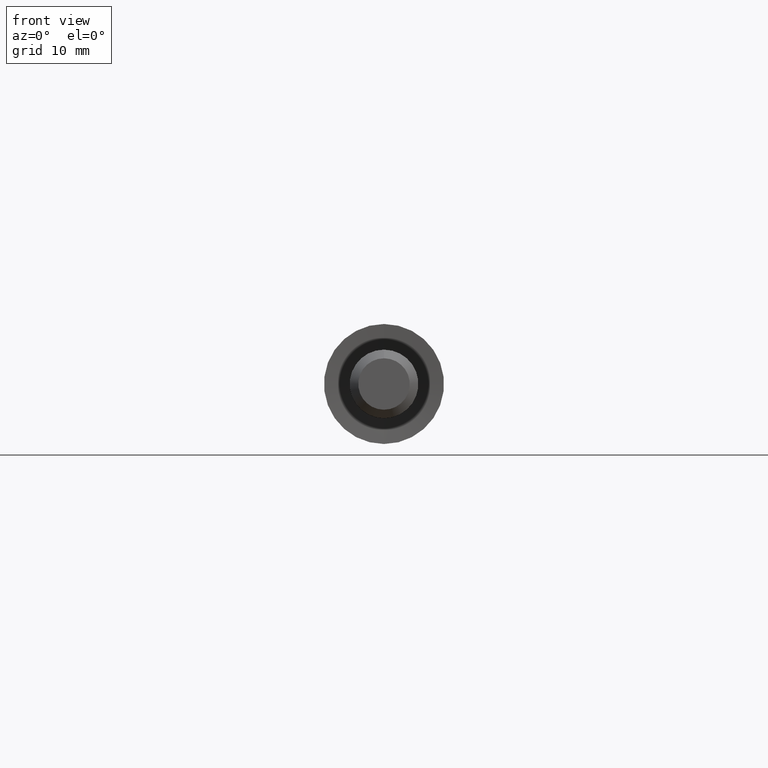
[diagram: clean part render]
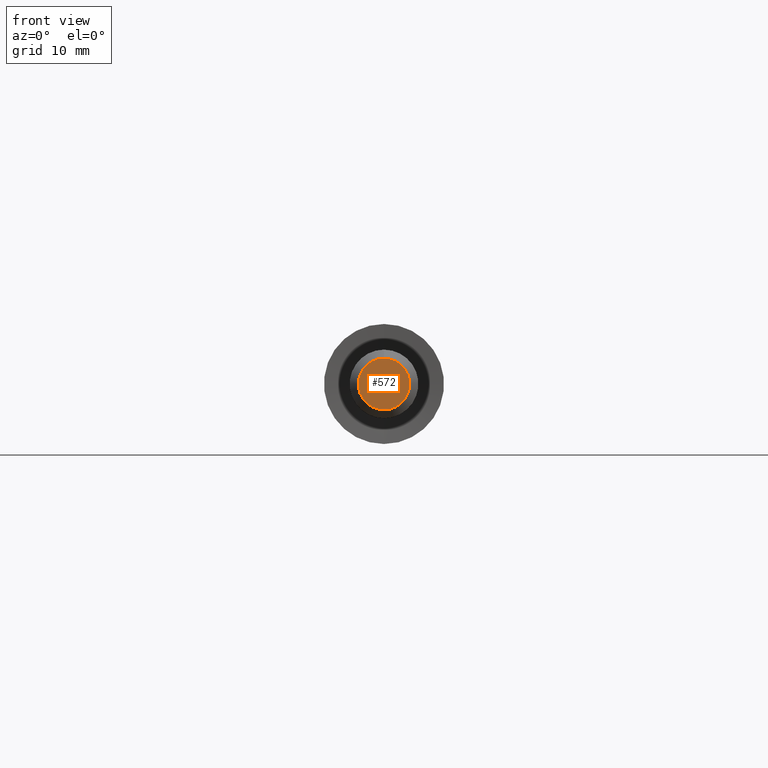
[diagram: same view with one face highlighted and labeled with its STEP entity id]
A machine part, front view. The second image highlights one B-rep face of the part: STEP entity #572.
In plain terms, the highlighted planar face has unit normal (0, -1, -0).
Its self-contained STEP definition (entity closure, byte-faithful):
#24 = CARTESIAN_POINT ( 'NONE',  ( 0.0000000000000000000, -14.99999999999999800, 0.0000000000000000000 ) ) ;
#60 = CARTESIAN_POINT ( 'NONE',  ( 0.0000000000000000000, -14.99999999999999800, 0.0000000000000000000 ) ) ;
#146 = DIRECTION ( 'NONE',  ( 0.0000000000000000000, -1.000000000000000000, -0.0000000000000000000 ) ) ;
#150 = VERTEX_POINT ( 'NONE', #286 ) ;
#172 = DIRECTION ( 'NONE',  ( -0.0000000000000000000, -1.000000000000000000, -0.0000000000000000000 ) ) ;
#188 = DIRECTION ( 'NONE',  ( -0.0000000000000000000, -1.000000000000000000, -0.0000000000000000000 ) ) ;
#192 = CIRCLE ( 'NONE', #827, 3.000000000000000000 ) ;
#206 = PLANE ( 'NONE',  #534 ) ;
#255 = CIRCLE ( 'NONE', #707, 3.000000000000000000 ) ;
#279 = ORIENTED_EDGE ( 'NONE', *, *, #471, .T. ) ;
#286 = CARTESIAN_POINT ( 'NONE',  ( 4.286263797015736600E-016, -14.99999999999999800, -3.000000000000000000 ) ) ;
#313 = VERTEX_POINT ( 'NONE', #560 ) ;
#314 = DIRECTION ( 'NONE',  ( 0.0000000000000000000, 0.0000000000000000000, -1.000000000000000000 ) ) ;
#349 = FACE_OUTER_BOUND ( 'NONE', #836, .T. ) ;
#367 = ORIENTED_EDGE ( 'NONE', *, *, #413, .T. ) ;
#413 = EDGE_CURVE ( 'NONE', #313, #150, #255, .T. ) ;
#448 = DIRECTION ( 'NONE',  ( 0.0000000000000000000, 0.0000000000000000000, -1.000000000000000000 ) ) ;
#471 = EDGE_CURVE ( 'NONE', #150, #313, #192, .T. ) ;
#534 = AXIS2_PLACEMENT_3D ( 'NONE', #776, #146, #829 ) ;
#560 = CARTESIAN_POINT ( 'NONE',  ( 0.0000000000000000000, -14.99999999999999800, 3.000000000000000000 ) ) ;
#572 = ADVANCED_FACE ( 'NONE', ( #349 ), #206, .T. ) ;
#707 = AXIS2_PLACEMENT_3D ( 'NONE', #24, #172, #448 ) ;
#776 = CARTESIAN_POINT ( 'NONE',  ( 1.836970198721029600E-015, -15.00000000000000000, 0.0000000000000000000 ) ) ;
#827 = AXIS2_PLACEMENT_3D ( 'NONE', #60, #188, #314 ) ;
#829 = DIRECTION ( 'NONE',  ( 0.0000000000000000000, 0.0000000000000000000, -1.000000000000000000 ) ) ;
#836 = EDGE_LOOP ( 'NONE', ( #367, #279 ) ) ;